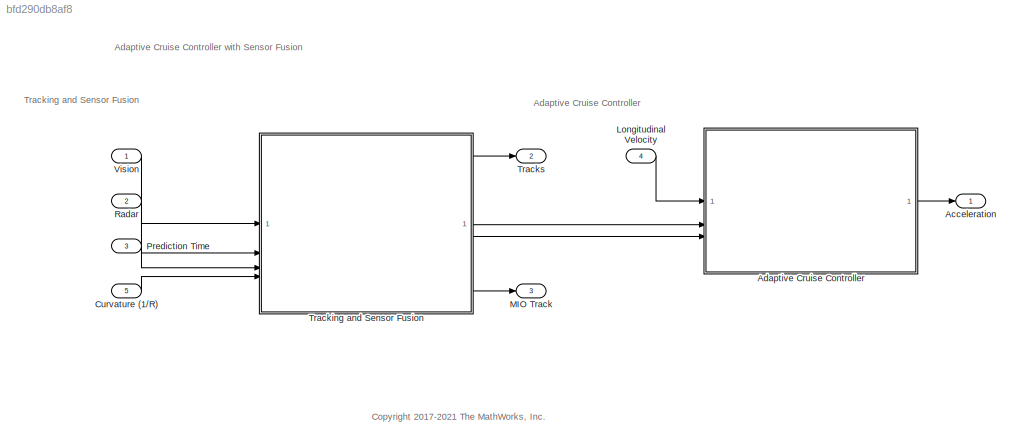
MODEL slx_bfd290db8af8
KIND model
CONFIG AbsTol = auto
CONFIG EnableMultiTasking = off
CONFIG FixedStep = 0.01
CONFIG MaxStep = auto
CONFIG MinStep = auto
CONFIG RelTol = 1e-3
CONFIG SampleTimeConstraint = Unconstrained
CONFIG SolverName = FixedStepAuto
CONFIG StartTime = 0.0
CONFIG StopTime = 34
BLOCK [Outport] Acceleration 
  OutDataTypeStr = double
  PortDimensions = 1
  SampleTime = [0.010000000000000001,0]
  SamplingMode = Sample based
  SignalType = real
  VectorParamsAs1DForOutWhenUnconnected = off
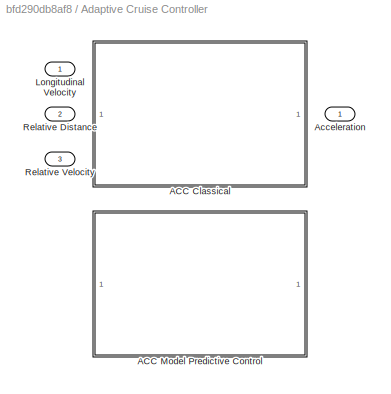
BLOCK [SubSystem] Adaptive Cruise Controller
  Variant = on
  VariantControl = Variant1
BLOCK [Outport] Adaptive Cruise Controller/ Acceleration
  VectorParamsAs1DForOutWhenUnconnected = off
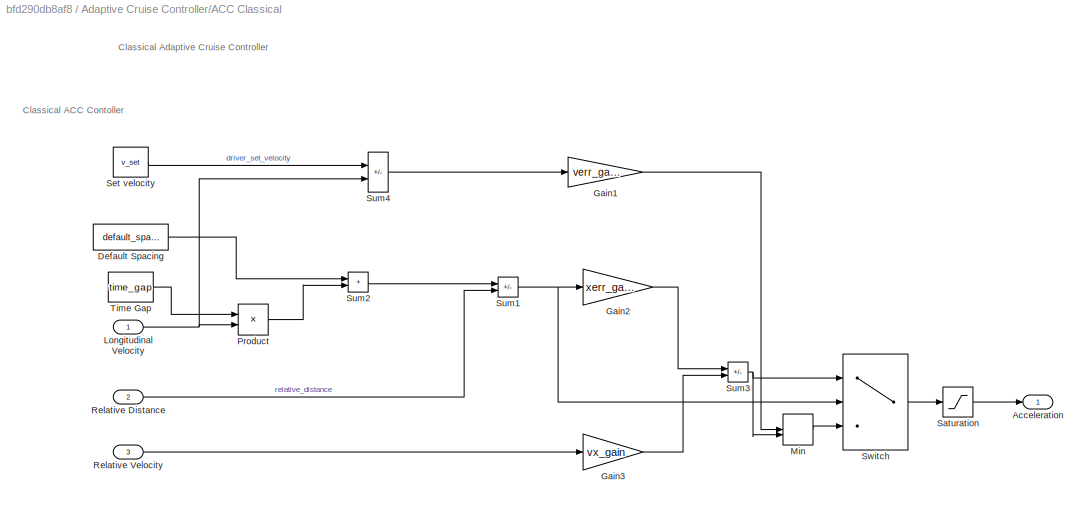
BLOCK [SubSystem] Adaptive Cruise Controller/ACC Classical
  RTWFileNameOpts = Use function name
  RTWSystemCode = Reusable function
  TreatAsAtomicUnit = on
  VariantControl = controller_type == 1
BLOCK [Outport] Adaptive Cruise Controller/ACC Classical/Acceleration
  VectorParamsAs1DForOutWhenUnconnected = off
BLOCK [Constant] Adaptive Cruise Controller/ACC Classical/Default Spacing
  SampleTime = Ts
  Value = default_spacing
BLOCK [Gain] Adaptive Cruise Controller/ACC Classical/Gain1
  Gain = verr_gain
BLOCK [Gain] Adaptive Cruise Controller/ACC Classical/Gain2
  Gain = xerr_gain
BLOCK [Gain] Adaptive Cruise Controller/ACC Classical/Gain3
  Gain = vx_gain
BLOCK [Inport] Adaptive Cruise Controller/ACC Classical/Longitudinal Velocity
BLOCK [MinMax] Adaptive Cruise Controller/ACC Classical/Min
  Inputs = 2
BLOCK [Product] Adaptive Cruise Controller/ACC Classical/Product
BLOCK [Inport] Adaptive Cruise Controller/ACC Classical/Relative Distance
  Port = 2
BLOCK [Inport] Adaptive Cruise Controller/ACC Classical/Relative Velocity
  Port = 3
BLOCK [Saturate] Adaptive Cruise Controller/ACC Classical/Saturation
  LowerLimit = min_ac
  UpperLimit = max_ac
BLOCK [Constant] Adaptive Cruise Controller/ACC Classical/Set velocity
  SampleTime = Ts
  Value = v_set
BLOCK [Sum] Adaptive Cruise Controller/ACC Classical/Sum1
  IconShape = rectangular
  Inputs = +-
BLOCK [Sum] Adaptive Cruise Controller/ACC Classical/Sum2
  IconShape = rectangular
BLOCK [Sum] Adaptive Cruise Controller/ACC Classical/Sum3
  IconShape = rectangular
  Inputs = -+
BLOCK [Sum] Adaptive Cruise Controller/ACC Classical/Sum4
  IconShape = rectangular
  Inputs = +-
BLOCK [Switch] Adaptive Cruise Controller/ACC Classical/Switch
  Criteria = u2 > Threshold
  InputSameDT = off
  SaturateOnIntegerOverflow = off
BLOCK [Constant] Adaptive Cruise Controller/ACC Classical/Time Gap
  SampleTime = Ts
  Value = time_gap
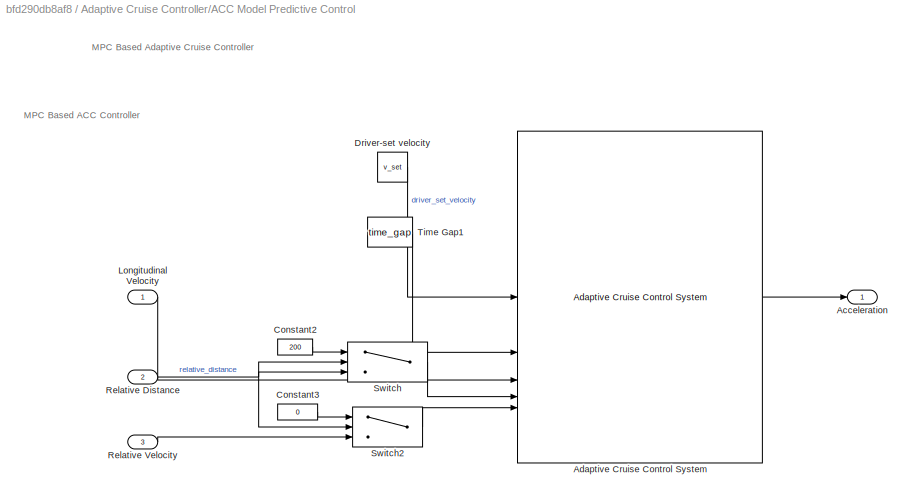
BLOCK [SubSystem] Adaptive Cruise Controller/ACC Model Predictive Control
  RTWFileNameOpts = Use function name
  RTWSystemCode = Reusable function
  TreatAsAtomicUnit = on
  VariantControl = controller_type == 2
BLOCK [Outport] Adaptive Cruise Controller/ACC Model Predictive Control/Acceleration
  OutDataTypeStr = double
  PortDimensions = 1
  SampleTime = [0.10000000000000001,0]
  SamplingMode = Sample based
  SignalType = real
  VectorParamsAs1DForOutWhenUnconnected = off
BLOCK [Reference] Adaptive Cruise Controller/ACC Model Predictive Control/Adaptive Cruise Control System  REF=mpcadaslib/Adaptive Cruise Control System
  SourceBlock = mpcadaslib/Adaptive Cruise Control System
  SourceType = Adaptive cruise control (ACC) system
BLOCK [Constant] Adaptive Cruise Controller/ACC Model Predictive Control/Constant2
  SampleTime = Ts
  Value = 200
BLOCK [Constant] Adaptive Cruise Controller/ACC Model Predictive Control/Constant3
  SampleTime = Ts
  Value = 0
BLOCK [Constant] Adaptive Cruise Controller/ACC Model Predictive Control/Driver-set velocity
  SampleTime = Ts
  Value = v_set
BLOCK [Inport] Adaptive Cruise Controller/ACC Model Predictive Control/Longitudinal Velocity
BLOCK [Inport] Adaptive Cruise Controller/ACC Model Predictive Control/Relative Distance
  Port = 2
BLOCK [Inport] Adaptive Cruise Controller/ACC Model Predictive Control/Relative Velocity
  Port = 3
BLOCK [Switch] Adaptive Cruise Controller/ACC Model Predictive Control/Switch
  Criteria = u2 > Threshold
  InputSameDT = off
  SaturateOnIntegerOverflow = off
  Threshold = 1000
BLOCK [Switch] Adaptive Cruise Controller/ACC Model Predictive Control/Switch2
  Criteria = u2 > Threshold
  InputSameDT = off
  SaturateOnIntegerOverflow = off
  Threshold = 1000
BLOCK [Constant] Adaptive Cruise Controller/ACC Model Predictive Control/Time Gap1
  SampleTime = Ts
  Value = time_gap
BLOCK [Inport] Adaptive Cruise Controller/Longitudinal Velocity 
BLOCK [Inport] Adaptive Cruise Controller/Relative Distance
  Port = 2
BLOCK [Inport] Adaptive Cruise Controller/Relative Velocity 
  Port = 3
BLOCK [Inport] Curvature (1//R)
  BusOutputAsStruct = on
  OutDataTypeStr = double
  Port = 5
  PortDimensions = [1 1]
  SampleTime = [0.010000000000000001,0]
  SamplingMode = Sample based
  SignalType = real
BLOCK [Inport] Longitudinal Velocity
  OutDataTypeStr = double
  Port = 4
  PortDimensions = 1
  SampleTime = [0.010000000000000001,0]
  SamplingMode = Sample based
  SignalType = real
BLOCK [Outport] MIO Track
  BusOutputAsStruct = on
  OutDataTypeStr = double
  Port = 3
  PortDimensions = 1
  SampleTime = [0.010000000000000001,0]
  SamplingMode = Sample based
  SignalType = real
  VectorParamsAs1DForOutWhenUnconnected = off
BLOCK [Inport] Prediction Time
  BusOutputAsStruct = on
  OutDataTypeStr = double
  Port = 3
  PortDimensions = [1 1]
  SampleTime = [0.010000000000000001,0]
  SamplingMode = Sample based
  SignalType = real
BLOCK [Inport] Radar
  BusOutputAsStruct = on
  OutDataTypeStr = Bus: BusRadar
  Port = 2
  PortDimensions = [1 1]
  SampleTime = [0.010000000000000001,0]
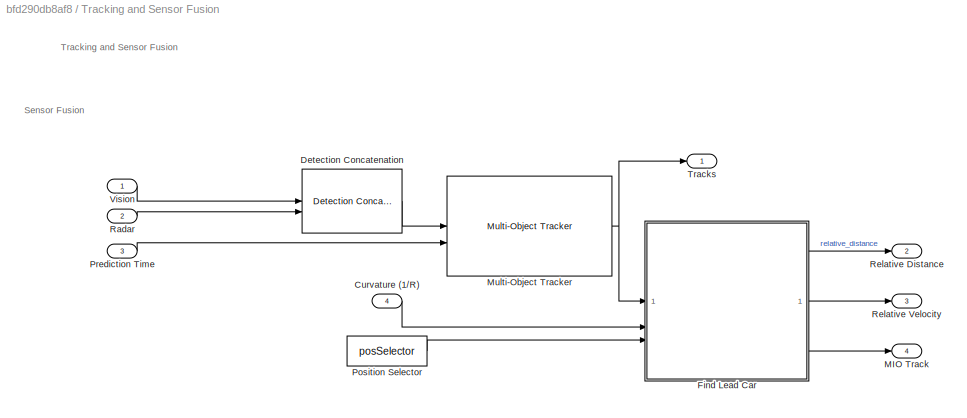
BLOCK [SubSystem] Tracking and Sensor Fusion
  RTWFileNameOpts = Use function name
  RTWSystemCode = Reusable function
  TreatAsAtomicUnit = on
BLOCK [Inport] Tracking and Sensor Fusion/Curvature (1//R)
  BusOutputAsStruct = on
  OutDataTypeStr = double
  Port = 4
  PortDimensions = [1 1]
  SampleTime = [0.010000000000000001,0]
BLOCK [Reference] Tracking and Sensor Fusion/Detection Concatenation  REF=trackingutilitieslib/Detection Concatenation
  SourceBlock = trackingutilitieslib/Detection Concatenation
  SourceType = matlabshared.tracking.internal.DetectionConcatenation
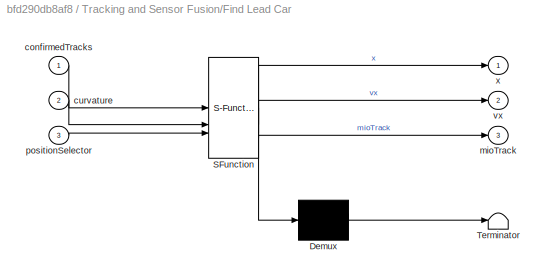
BLOCK [SubSystem] Tracking and Sensor Fusion/Find Lead Car
  ErrorFcn = Stateflow.Translate.translate
  PermitHierarchicalResolution = ExplicitOnly
  SFBlockType = MATLAB Function
  TreatAsAtomicUnit = on
BLOCK [Demux] Tracking and Sensor Fusion/Find Lead Car/ Demux 
  Outputs = 1
BLOCK [S-Function] Tracking and Sensor Fusion/Find Lead Car/ SFunction 
  EnableBusSupport = on
  FunctionName = sf_sfun
  PortCounts = [3 4]
  SFcnIsStateOwnerBlock = off
  SFunctionDeploymentMode = off
  Tag = Stateflow S-Function 1
BLOCK [Terminator] Tracking and Sensor Fusion/Find Lead Car/ Terminator 
BLOCK [Inport] Tracking and Sensor Fusion/Find Lead Car/confirmedTracks
BLOCK [Inport] Tracking and Sensor Fusion/Find Lead Car/curvature
  Port = 2
BLOCK [Outport] Tracking and Sensor Fusion/Find Lead Car/mioTrack
  Port = 3
  VectorParamsAs1DForOutWhenUnconnected = off
BLOCK [Inport] Tracking and Sensor Fusion/Find Lead Car/positionSelector
  Port = 3
BLOCK [Outport] Tracking and Sensor Fusion/Find Lead Car/vx
  Port = 2
  VectorParamsAs1DForOutWhenUnconnected = off
BLOCK [Outport] Tracking and Sensor Fusion/Find Lead Car/x
  VectorParamsAs1DForOutWhenUnconnected = off
BLOCK [Outport] Tracking and Sensor Fusion/MIO Track
  Port = 4
  VectorParamsAs1DForOutWhenUnconnected = off
BLOCK [Reference] Tracking and Sensor Fusion/Multi-Object Tracker  REF=drivinglib/Multi-Object Tracker
  SourceBlock = drivinglib/Multi-Object Tracker
  SourceType = multiObjectTracker
BLOCK [Constant] Tracking and Sensor Fusion/Position Selector
  Value = posSelector
BLOCK [Inport] Tracking and Sensor Fusion/Prediction Time
  BusOutputAsStruct = on
  OutDataTypeStr = double
  Port = 3
  PortDimensions = [1 1]
  SampleTime = [0.010000000000000001,0]
BLOCK [Inport] Tracking and Sensor Fusion/Radar
  BusOutputAsStruct = on
  OutDataTypeStr = Bus: BusRadar
  Port = 2
  PortDimensions = [1 1]
  SampleTime = [0.010000000000000001,0]
BLOCK [Outport] Tracking and Sensor Fusion/Relative Distance
  Port = 2
  VectorParamsAs1DForOutWhenUnconnected = off
BLOCK [Outport] Tracking and Sensor Fusion/Relative Velocity
  Port = 3
  VectorParamsAs1DForOutWhenUnconnected = off
BLOCK [Outport] Tracking and Sensor Fusion/Tracks
  BusOutputAsStruct = on
  OutDataTypeStr = Bus:BusMultiObjectTracker1
  PortDimensions = [1 1]
  SampleTime = [0.010000000000000001,0]
  SamplingMode = Sample based
  SignalType = real
  VectorParamsAs1DForOutWhenUnconnected = off
BLOCK [Inport] Tracking and Sensor Fusion/Vision
  BusOutputAsStruct = on
  OutDataTypeStr = Bus: BusVision
  PortDimensions = [1 1]
  SampleTime = [0.010000000000000001,0]
BLOCK [Outport] Tracks
  BusOutputAsStruct = on
  OutDataTypeStr = Bus:BusMultiObjectTracker1
  Port = 2
  PortDimensions = [1 1]
  SampleTime = [0.010000000000000001,0]
  SamplingMode = Sample based
  SignalType = real
  VectorParamsAs1DForOutWhenUnconnected = off
BLOCK [Inport] Vision
  BusOutputAsStruct = on
  OutDataTypeStr = Bus: BusVision
  PortDimensions = [1 1]
  SampleTime = [0.010000000000000001,0]
ANNOTATION (root): Adaptive Cruise Controller with Sensor Fusion
ANNOTATION (root): Adaptive Cruise Controller
ANNOTATION (root): <copyright redacted>
ANNOTATION (root): Tracking and Sensor Fusion
ANNOTATION Adaptive Cruise Controller/ACC Classical: Classical Adaptive Cruise Controller
ANNOTATION Adaptive Cruise Controller/ACC Classical: Classical ACC Contoller
ANNOTATION Adaptive Cruise Controller/ACC Model Predictive Control: MPC Based Adaptive Cruise Controller
ANNOTATION Adaptive Cruise Controller/ACC Model Predictive Control: MPC Based ACC Controller
ANNOTATION Tracking and Sensor Fusion: Tracking and Sensor Fusion
ANNOTATION Tracking and Sensor Fusion: Sensor Fusion
LINE Adaptive Cruise Controller/ACC Classical/Default Spacing:1 -> Adaptive Cruise Controller/ACC Classical/Sum2:1
LINE Adaptive Cruise Controller/ACC Classical/Gain1:1 -> Adaptive Cruise Controller/ACC Classical/Min:1
LINE Adaptive Cruise Controller/ACC Classical/Gain2:1 -> Adaptive Cruise Controller/ACC Classical/Sum3:1
LINE Adaptive Cruise Controller/ACC Classical/Gain3:1 -> Adaptive Cruise Controller/ACC Classical/Sum3:2
NET Adaptive Cruise Controller/ACC Classical/Longitudinal Velocity:1 -> Adaptive Cruise Controller/ACC Classical/Product:2, Adaptive Cruise Controller/ACC Classical/Sum4:2
LINE Adaptive Cruise Controller/ACC Classical/Min:1 -> Adaptive Cruise Controller/ACC Classical/Switch:3
LINE Adaptive Cruise Controller/ACC Classical/Product:1 -> Adaptive Cruise Controller/ACC Classical/Sum2:2
LINE Adaptive Cruise Controller/ACC Classical/Relative Distance:1 -> Adaptive Cruise Controller/ACC Classical/Sum1:2
LINE Adaptive Cruise Controller/ACC Classical/Relative Velocity:1 -> Adaptive Cruise Controller/ACC Classical/Gain3:1
LINE Adaptive Cruise Controller/ACC Classical/Saturation:1 -> Adaptive Cruise Controller/ACC Classical/Acceleration:1
LINE Adaptive Cruise Controller/ACC Classical/Set velocity:1 -> Adaptive Cruise Controller/ACC Classical/Sum4:1
NET Adaptive Cruise Controller/ACC Classical/Sum1:1 -> Adaptive Cruise Controller/ACC Classical/Gain2:1, Adaptive Cruise Controller/ACC Classical/Switch:2
LINE Adaptive Cruise Controller/ACC Classical/Sum2:1 -> Adaptive Cruise Controller/ACC Classical/Sum1:1
NET Adaptive Cruise Controller/ACC Classical/Sum3:1 -> Adaptive Cruise Controller/ACC Classical/Min:2, Adaptive Cruise Controller/ACC Classical/Switch:1
LINE Adaptive Cruise Controller/ACC Classical/Sum4:1 -> Adaptive Cruise Controller/ACC Classical/Gain1:1
LINE Adaptive Cruise Controller/ACC Classical/Switch:1 -> Adaptive Cruise Controller/ACC Classical/Saturation:1
LINE Adaptive Cruise Controller/ACC Classical/Time Gap:1 -> Adaptive Cruise Controller/ACC Classical/Product:1
LINE Adaptive Cruise Controller/ACC Model Predictive Control/Adaptive Cruise Control System:1 -> Adaptive Cruise Controller/ACC Model Predictive Control/Acceleration:1
LINE Adaptive Cruise Controller/ACC Model Predictive Control/Constant2:1 -> Adaptive Cruise Controller/ACC Model Predictive Control/Switch:1
LINE Adaptive Cruise Controller/ACC Model Predictive Control/Constant3:1 -> Adaptive Cruise Controller/ACC Model Predictive Control/Switch2:1
LINE Adaptive Cruise Controller/ACC Model Predictive Control/Driver-set velocity:1 -> Adaptive Cruise Controller/ACC Model Predictive Control/Adaptive Cruise Control System:1
LINE Adaptive Cruise Controller/ACC Model Predictive Control/Longitudinal Velocity:1 -> Adaptive Cruise Controller/ACC Model Predictive Control/Adaptive Cruise Control System:3
NET Adaptive Cruise Controller/ACC Model Predictive Control/Relative Distance:1 -> Adaptive Cruise Controller/ACC Model Predictive Control/Switch2:2, Adaptive Cruise Controller/ACC Model Predictive Control/Switch:2, Adaptive Cruise Controller/ACC Model Predictive Control/Switch:3
LINE Adaptive Cruise Controller/ACC Model Predictive Control/Relative Velocity:1 -> Adaptive Cruise Controller/ACC Model Predictive Control/Switch2:3
LINE Adaptive Cruise Controller/ACC Model Predictive Control/Switch2:1 -> Adaptive Cruise Controller/ACC Model Predictive Control/Adaptive Cruise Control System:5
LINE Adaptive Cruise Controller/ACC Model Predictive Control/Switch:1 -> Adaptive Cruise Controller/ACC Model Predictive Control/Adaptive Cruise Control System:4
LINE Adaptive Cruise Controller/ACC Model Predictive Control/Time Gap1:1 -> Adaptive Cruise Controller/ACC Model Predictive Control/Adaptive Cruise Control System:2
LINE Adaptive Cruise Controller:1 -> Acceleration :1
LINE Curvature (1//R):1 -> Tracking and Sensor Fusion:4
LINE Longitudinal Velocity:1 -> Adaptive Cruise Controller:1
LINE Prediction Time:1 -> Tracking and Sensor Fusion:3
LINE Radar:1 -> Tracking and Sensor Fusion:2
LINE Tracking and Sensor Fusion/Curvature (1//R):1 -> Tracking and Sensor Fusion/Find Lead Car:2
LINE Tracking and Sensor Fusion/Detection Concatenation:1 -> Tracking and Sensor Fusion/Multi-Object Tracker:1
LINE Tracking and Sensor Fusion/Find Lead Car:1 -> Tracking and Sensor Fusion/Relative Distance:1
LINE Tracking and Sensor Fusion/Find Lead Car:2 -> Tracking and Sensor Fusion/Relative Velocity:1
LINE Tracking and Sensor Fusion/Find Lead Car:3 -> Tracking and Sensor Fusion/MIO Track:1
NET Tracking and Sensor Fusion/Multi-Object Tracker:1 -> Tracking and Sensor Fusion/Find Lead Car:1, Tracking and Sensor Fusion/Tracks:1
LINE Tracking and Sensor Fusion/Position Selector:1 -> Tracking and Sensor Fusion/Find Lead Car:3
LINE Tracking and Sensor Fusion/Prediction Time:1 -> Tracking and Sensor Fusion/Multi-Object Tracker:2
LINE Tracking and Sensor Fusion/Radar:1 -> Tracking and Sensor Fusion/Detection Concatenation:2
LINE Tracking and Sensor Fusion/Vision:1 -> Tracking and Sensor Fusion/Detection Concatenation:1
LINE Tracking and Sensor Fusion:1 -> Tracks:1
LINE Tracking and Sensor Fusion:2 -> Adaptive Cruise Controller:2
LINE Tracking and Sensor Fusion:3 -> Adaptive Cruise Controller:3
LINE Tracking and Sensor Fusion:4 -> MIO Track:1
LINE Vision:1 -> Tracking and Sensor Fusion:1
note: NET lines group one-source signal fan-out (src -> all destinations, sorted); 1:1 wires keep LINE
CHART Tracking and Sensor Fusion/Find Lead Car states=1 transitions=1
  STATE_LABEL 'eML_blk_kernel()'
  STATE_LABEL "SCRIPT:\nfunction [x,vx,mioTrack] = findLeadCar(confirmedTracks, curvature, positionSelector)\n% This function finds the lead car: a car in front of the ego car that\n% satisfies all the criteria below:\n% * Within the ego car's lane.\n% * In front of the ego car.\n% * Closest to the ego car.\n\n% Important notes:\n% 1. If you change state definition, change the following:\n%       State = [x;vx;y;vy;z;vz] ...<+1713ch>"
CHART  states=0 transitions=0
